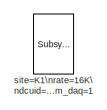
[diagram: root canvas - part 1/4, top left region]
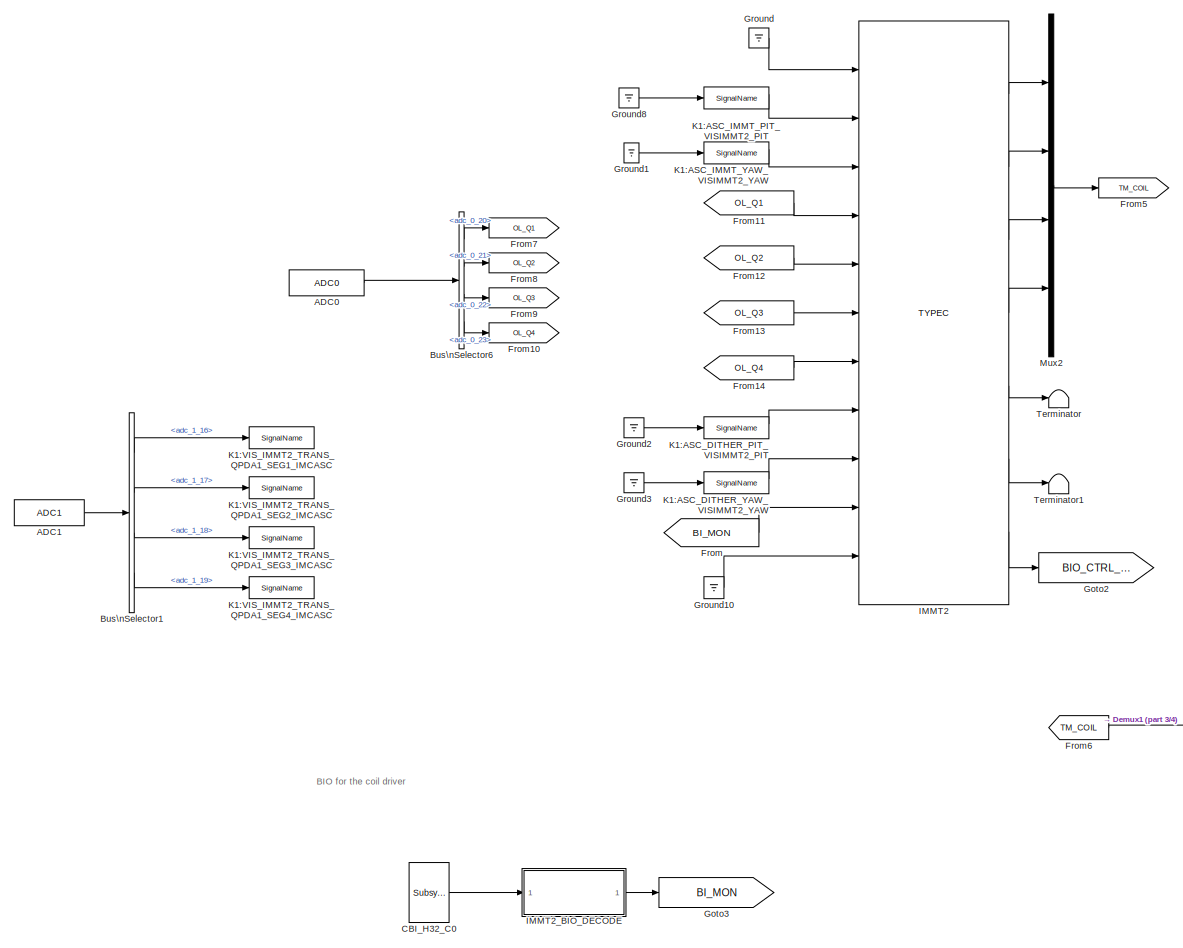
[diagram: root canvas - part 2/4, full width, middle band]
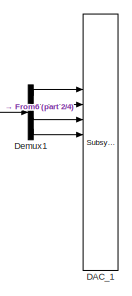
[diagram: root canvas - part 3/4, middle right region]
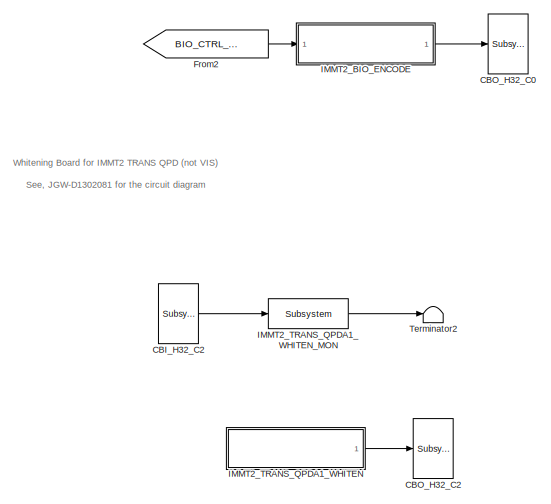
[diagram: root canvas - part 4/4, bottom center region]
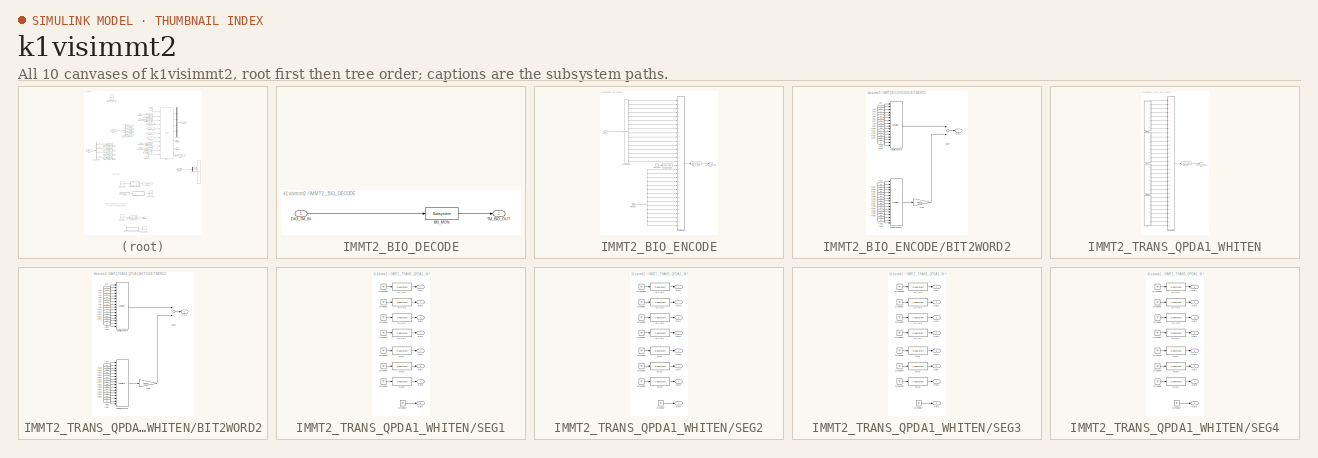
[diagram: thumbnail index - all 10 canvases of the model, root first then tree order]
MODEL k1visimmt2
KIND model
BLOCK [Reference] ADC0  REF=cdsAdcx0/ADC0
  AttributesFormatString = %<Description>\\n%<Tag>
  Description = type-GSC_16AI64SSA\ncard_num=0
  Ports = [0, 1]
  SID = 377
  SourceBlock = cdsAdcx0/ADC0
  SourceType = SubSystem
  Tag = cdsAdc
BLOCK [Reference] ADC1  REF=cdsAdcx1/ADC1
  AttributesFormatString = %<Description>\\n%<Tag>
  Description = type-GSC_16AI64SSA\ncard_num=1
  Ports = [0, 1]
  SID = 514
  SourceBlock = cdsAdcx1/ADC1
  SourceType = SubSystem
  Tag = cdsAdc
BLOCK [BusSelector] Bus\nSelector1
  AttributesFormatString = %<Description>
  Description = ADC Selector
  OutputSignals = adc_1_16,adc_1_17,adc_1_18,adc_1_19
  Ports = [1, 4]
  SID = 515
BLOCK [BusSelector] Bus\nSelector6
  AttributesFormatString = %<Description>
  Description = ADC Selector
  OutputSignals = adc_0_20,adc_0_21,adc_0_22,adc_0_23
  Ports = [1, 4]
  SID = 284
BLOCK [Reference] CBI_H32_C0  REF=cdsCDI64/Subsystem
  AttributesFormatString = %<Tag>\\n%<Description>
  Description = card_num=1
  Ports = [0, 1]
  SID = 512
  SourceBlock = cdsCDI64/Subsystem
  SourceType = SubSystem
  Tag = cdsCDI64
BLOCK [Reference] CBI_H32_C2  REF=cdsCDI64/Subsystem
  AttributesFormatString = %<Tag>\\n%<Description>
  Description = card_num=5
  Ports = [0, 1]
  SID = 544
  SourceBlock = cdsCDI64/Subsystem
  SourceType = SubSystem
  Tag = cdsCDI64
BLOCK [Reference] CBO_H32_C0  REF=cdsCDO64/Subsystem
  AttributesFormatString = %<Tag>\\n%<Description>
  Description = card_num=1
  Ports = [1]
  SID = 513
  SourceBlock = cdsCDO64/Subsystem
  SourceType = SubSystem
  Tag = cdsCDO64
BLOCK [Reference] CBO_H32_C2  REF=cdsCDO64/Subsystem
  AttributesFormatString = %<Tag>\\n%<Description>
  Description = card_num=5
  Ports = [1]
  SID = 545
  SourceBlock = cdsCDO64/Subsystem
  SourceType = SubSystem
  Tag = cdsCDO64
BLOCK [Reference] DAC_1  REF=dac/Subsystem  (lib defined in slx_40ef132df75b, slx_b7657ccccc5b, +4 more)
  AttributesFormatString = %<Description>
  Description = type=GSC_16AO16,\ncard_num=1
  Ports = [16]
  SID = 443
  SourceBlock = dac/Subsystem
  SourceType = SubSystem
BLOCK [Demux] Demux1
  DisplayOption = bar
  Ports = [1, 4]
  SID = 444
BLOCK [From] From
  GotoTag = BI_MON
  SID = 510
BLOCK [Goto] From10
  GotoTag = OL_Q4
  SID = 408
BLOCK [From] From11
  GotoTag = OL_Q1
  SID = 403
BLOCK [From] From12
  GotoTag = OL_Q2
  SID = 404
BLOCK [From] From13
  GotoTag = OL_Q3
  SID = 405
BLOCK [From] From14
  GotoTag = OL_Q4
  SID = 406
BLOCK [From] From2
  GotoTag = BIO_CTRL_OUT
  SID = 508
BLOCK [Goto] From5
  GotoTag = TM_COIL
  SID = 412
BLOCK [From] From6
  GotoTag = TM_COIL
  SID = 415
BLOCK [Goto] From7
  GotoTag = OL_Q1
  SID = 409
BLOCK [Goto] From8
  GotoTag = OL_Q2
  SID = 410
BLOCK [Goto] From9
  GotoTag = OL_Q3
  SID = 411
BLOCK [Goto] Goto2
  GotoTag = BIO_CTRL_OUT
  SID = 511
BLOCK [Goto] Goto3
  GotoTag = BI_MON
  SID = 509
BLOCK [Ground] Ground
  SID = 321
BLOCK [Ground] Ground1
  SID = 707
BLOCK [Ground] Ground10
  SID = 394
BLOCK [Ground] Ground2
  SID = 708
BLOCK [Ground] Ground3
  SID = 709
BLOCK [Ground] Ground8
  SID = 333
BLOCK [Reference] IMMT2  REF=TYPEC_SINGLE_MASTER/TYPEC
  AttributesFormatString = %<Description>
  Description = TYPEC SINGLE MASTER
  Ports = [11, 7]
  SID = 434
  SourceBlock = TYPEC_SINGLE_MASTER/TYPEC
  SourceType = SubSystem
  Tag = top_names
BLOCK [SubSystem] IMMT2_BIO_DECODE
  Ports = [1, 1]
  RequestExecContextInheritance = off
  SID = 456
  Variant = off
BLOCK [Reference] IMMT2_BIO_DECODE/BI0_MON  REF=cdsEpicsOut/Subsystem
  AttributesFormatString = %<Tag>
  Description = Purpose:                                          \nOutput a FE signal to an EPICS channel.           \n                                                  \nOperation:                                        \nTakes input value and passes it to EPICS record.  \n                                                  \nUsage:                                            \nName the part with the desired EPICS...<+14ch>  <repeated x4 — deduplicated; at blocks: BI0_MON, DIO_0_OUT, DIO_OUT, IMMT2_TRANS_QPDA1_WHITEN_MON>
  Ports = [1, 1]
  SID = 458
  SourceBlock = cdsEpicsOut/Subsystem
  SourceType = SubSystem
  Tag = cdsEpicsOutput
BLOCK [Inport] IMMT2_BIO_DECODE/DIO_TM_IN
  IconDisplay = Port number
  SID = 457
BLOCK [Outport] IMMT2_BIO_DECODE/TM_BIO_OUT
  IconDisplay = Port number
  SID = 459
BLOCK [SubSystem] IMMT2_BIO_ENCODE
  Ports = [1, 1]
  RequestExecContextInheritance = off
  SID = 460
  Variant = off
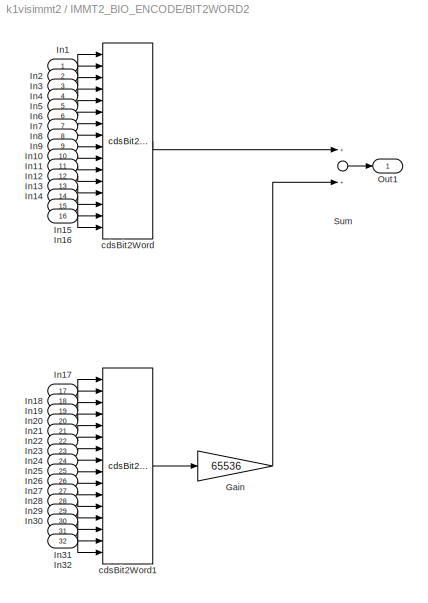
BLOCK [SubSystem] IMMT2_BIO_ENCODE/BIT2WORD2
  Ports = [32, 1]
  RequestExecContextInheritance = off
  SID = 462
  Variant = off
BLOCK [Gain] IMMT2_BIO_ENCODE/BIT2WORD2/Gain
  Gain = 65536
  OutDataTypeStr = Inherit: Inherit via internal rule
  ParamDataTypeStr = Inherit: Inherit via internal rule
  SID = 495
  SaturateOnIntegerOverflow = off
BLOCK [Inport] IMMT2_BIO_ENCODE/BIT2WORD2/In1
  IconDisplay = Port number
  SID = 463
BLOCK [Inport] IMMT2_BIO_ENCODE/BIT2WORD2/In10
  IconDisplay = Port number
  Port = 10
  SID = 472
BLOCK [Inport] IMMT2_BIO_ENCODE/BIT2WORD2/In11
  IconDisplay = Port number
  Port = 11
  SID = 473
BLOCK [Inport] IMMT2_BIO_ENCODE/BIT2WORD2/In12
  IconDisplay = Port number
  Port = 12
  SID = 474
BLOCK [Inport] IMMT2_BIO_ENCODE/BIT2WORD2/In13
  IconDisplay = Port number
  Port = 13
  SID = 475
BLOCK [Inport] IMMT2_BIO_ENCODE/BIT2WORD2/In14
  IconDisplay = Port number
  Port = 14
  SID = 476
BLOCK [Inport] IMMT2_BIO_ENCODE/BIT2WORD2/In15
  IconDisplay = Port number
  Port = 15
  SID = 477
BLOCK [Inport] IMMT2_BIO_ENCODE/BIT2WORD2/In16
  IconDisplay = Port number
  Port = 16
  SID = 478
BLOCK [Inport] IMMT2_BIO_ENCODE/BIT2WORD2/In17
  IconDisplay = Port number
  Port = 17
  SID = 479
BLOCK [Inport] IMMT2_BIO_ENCODE/BIT2WORD2/In18
  IconDisplay = Port number
  Port = 18
  SID = 480
BLOCK [Inport] IMMT2_BIO_ENCODE/BIT2WORD2/In19
  IconDisplay = Port number
  Port = 19
  SID = 481
BLOCK [Inport] IMMT2_BIO_ENCODE/BIT2WORD2/In2
  IconDisplay = Port number
  Port = 2
  SID = 464
BLOCK [Inport] IMMT2_BIO_ENCODE/BIT2WORD2/In20
  IconDisplay = Port number
  Port = 20
  SID = 482
BLOCK [Inport] IMMT2_BIO_ENCODE/BIT2WORD2/In21
  IconDisplay = Port number
  Port = 21
  SID = 483
BLOCK [Inport] IMMT2_BIO_ENCODE/BIT2WORD2/In22
  IconDisplay = Port number
  Port = 22
  SID = 484
BLOCK [Inport] IMMT2_BIO_ENCODE/BIT2WORD2/In23
  IconDisplay = Port number
  Port = 23
  SID = 485
BLOCK [Inport] IMMT2_BIO_ENCODE/BIT2WORD2/In24
  IconDisplay = Port number
  Port = 24
  SID = 486
BLOCK [Inport] IMMT2_BIO_ENCODE/BIT2WORD2/In25
  IconDisplay = Port number
  Port = 25
  SID = 487
BLOCK [Inport] IMMT2_BIO_ENCODE/BIT2WORD2/In26
  IconDisplay = Port number
  Port = 26
  SID = 488
BLOCK [Inport] IMMT2_BIO_ENCODE/BIT2WORD2/In27
  IconDisplay = Port number
  Port = 27
  SID = 489
BLOCK [Inport] IMMT2_BIO_ENCODE/BIT2WORD2/In28
  IconDisplay = Port number
  Port = 28
  SID = 490
BLOCK [Inport] IMMT2_BIO_ENCODE/BIT2WORD2/In29
  IconDisplay = Port number
  Port = 29
  SID = 491
BLOCK [Inport] IMMT2_BIO_ENCODE/BIT2WORD2/In3
  IconDisplay = Port number
  Port = 3
  SID = 465
BLOCK [Inport] IMMT2_BIO_ENCODE/BIT2WORD2/In30
  IconDisplay = Port number
  Port = 30
  SID = 492
BLOCK [Inport] IMMT2_BIO_ENCODE/BIT2WORD2/In31
  IconDisplay = Port number
  Port = 31
  SID = 493
BLOCK [Inport] IMMT2_BIO_ENCODE/BIT2WORD2/In32
  IconDisplay = Port number
  Port = 32
  SID = 494
BLOCK [Inport] IMMT2_BIO_ENCODE/BIT2WORD2/In4
  IconDisplay = Port number
  Port = 4
  SID = 466
BLOCK [Inport] IMMT2_BIO_ENCODE/BIT2WORD2/In5
  IconDisplay = Port number
  Port = 5
  SID = 467
BLOCK [Inport] IMMT2_BIO_ENCODE/BIT2WORD2/In6
  IconDisplay = Port number
  Port = 6
  SID = 468
BLOCK [Inport] IMMT2_BIO_ENCODE/BIT2WORD2/In7
  IconDisplay = Port number
  Port = 7
  SID = 469
BLOCK [Inport] IMMT2_BIO_ENCODE/BIT2WORD2/In8
  IconDisplay = Port number
  Port = 8
  SID = 470
BLOCK [Inport] IMMT2_BIO_ENCODE/BIT2WORD2/In9
  IconDisplay = Port number
  Port = 9
  SID = 471
BLOCK [Outport] IMMT2_BIO_ENCODE/BIT2WORD2/Out1
  IconDisplay = Port number
  SID = 499
BLOCK [Sum] IMMT2_BIO_ENCODE/BIT2WORD2/Sum
  InputSameDT = off
  OutDataTypeStr = Inherit: Inherit via internal rule
  Ports = [2, 1]
  SID = 496
  SaturateOnIntegerOverflow = off
BLOCK [Reference] IMMT2_BIO_ENCODE/BIT2WORD2/cdsBit2Word  REF=cdsBit2Word/cdsBit2Word
  AttributesFormatString = %<Tag>
  Description = Forms single 16 bit integer from 16 0/1 inputs.
  Ports = [16, 1]
  SID = 497
  SourceBlock = cdsBit2Word/cdsBit2Word
  SourceType = SubSystem
  Tag = cdsBit2Word
BLOCK [Reference] IMMT2_BIO_ENCODE/BIT2WORD2/cdsBit2Word1  REF=cdsBit2Word/cdsBit2Word
  AttributesFormatString = %<Tag>
  Description = Forms single 16 bit integer from 16 0/1 inputs.
  Ports = [16, 1]
  SID = 498
  SourceBlock = cdsBit2Word/cdsBit2Word
  SourceType = SubSystem
  Tag = cdsBit2Word
BLOCK [Outport] IMMT2_BIO_ENCODE/CARD0_L32BIT_OUT
  IconDisplay = Port number
  SID = 505
BLOCK [Reference] IMMT2_BIO_ENCODE/DIO_0_OUT  REF=cdsEpicsOut/Subsystem
  AttributesFormatString = %<Tag>
  Ports = [1, 1]
  SID = 500
  SourceBlock = cdsEpicsOut/Subsystem
  SourceType = SubSystem
  Tag = cdsEpicsOutput
BLOCK [Ground] IMMT2_BIO_ENCODE/Ground2
  SID = 501
BLOCK [Ground] IMMT2_BIO_ENCODE/Ground66
  SID = 502
BLOCK [Inport] IMMT2_BIO_ENCODE/TM_In
  IconDisplay = Port number
  SID = 461
BLOCK [Reference] IMMT2_BIO_ENCODE/TM_WD_RSET  REF=cdsEpicsBinIn/Subsystem
  AttributesFormatString = %<Tag>
  Description = Purpose:                                                                            \nCreate an EPICS binary (0 or 1) input channel to the FE realtime controls.          \n                                                                                    \nOperation:                                                                          \nOutputs value from an EPICS ai record. Value is binary i...<+252ch>  <repeated x29 — deduplicated; at blocks: TM_WD_RSET, FILT1, FILT2, FILT3, GAIN1, GAIN2, GAIN3, GAIN4>
  Ports = [1, 1]
  SID = 503
  SourceBlock = cdsEpicsBinIn/Subsystem
  SourceType = SubSystem
  Tag = cdsEpicsBinIn
BLOCK [Reference] IMMT2_BIO_ENCODE/cdsWord2Bit  REF=cdsWord2Bit/cdsWord2Bit
  AttributesFormatString = cdsWord2Bit
  Description = Generate 16 0/1 outputs from single 16-bit integer input
  Ports = [1, 16]
  SID = 504
  SourceBlock = cdsWord2Bit/cdsWord2Bit
  SourceType = SubSystem
  Tag = cdsWord2Bit
BLOCK [SubSystem] IMMT2_TRANS_QPDA1_WHITEN
  Ports = [0, 1]
  RequestExecContextInheritance = off
  SID = 546
  Variant = off
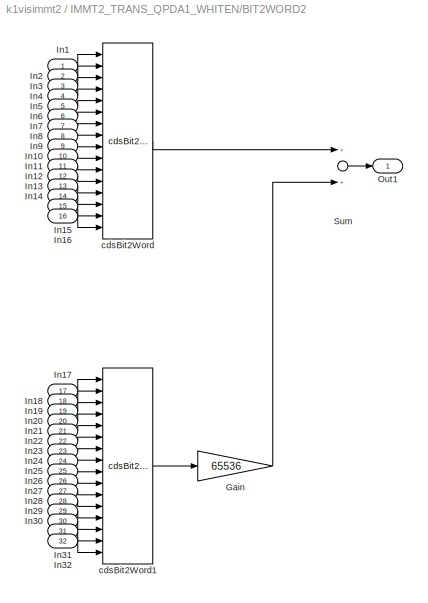
BLOCK [SubSystem] IMMT2_TRANS_QPDA1_WHITEN/BIT2WORD2
  Ports = [32, 1]
  RequestExecContextInheritance = off
  SID = 548
  Variant = off
BLOCK [Gain] IMMT2_TRANS_QPDA1_WHITEN/BIT2WORD2/Gain
  Gain = 65536
  OutDataTypeStr = Inherit: Inherit via internal rule
  ParamDataTypeStr = Inherit: Inherit via internal rule
  SID = 581
  SaturateOnIntegerOverflow = off
BLOCK [Inport] IMMT2_TRANS_QPDA1_WHITEN/BIT2WORD2/In1
  IconDisplay = Port number
  SID = 549
BLOCK [Inport] IMMT2_TRANS_QPDA1_WHITEN/BIT2WORD2/In10
  IconDisplay = Port number
  Port = 10
  SID = 558
BLOCK [Inport] IMMT2_TRANS_QPDA1_WHITEN/BIT2WORD2/In11
  IconDisplay = Port number
  Port = 11
  SID = 559
BLOCK [Inport] IMMT2_TRANS_QPDA1_WHITEN/BIT2WORD2/In12
  IconDisplay = Port number
  Port = 12
  SID = 560
BLOCK [Inport] IMMT2_TRANS_QPDA1_WHITEN/BIT2WORD2/In13
  IconDisplay = Port number
  Port = 13
  SID = 561
BLOCK [Inport] IMMT2_TRANS_QPDA1_WHITEN/BIT2WORD2/In14
  IconDisplay = Port number
  Port = 14
  SID = 562
BLOCK [Inport] IMMT2_TRANS_QPDA1_WHITEN/BIT2WORD2/In15
  IconDisplay = Port number
  Port = 15
  SID = 563
BLOCK [Inport] IMMT2_TRANS_QPDA1_WHITEN/BIT2WORD2/In16
  IconDisplay = Port number
  Port = 16
  SID = 564
BLOCK [Inport] IMMT2_TRANS_QPDA1_WHITEN/BIT2WORD2/In17
  IconDisplay = Port number
  Port = 17
  SID = 565
BLOCK [Inport] IMMT2_TRANS_QPDA1_WHITEN/BIT2WORD2/In18
  IconDisplay = Port number
  Port = 18
  SID = 566
BLOCK [Inport] IMMT2_TRANS_QPDA1_WHITEN/BIT2WORD2/In19
  IconDisplay = Port number
  Port = 19
  SID = 567
BLOCK [Inport] IMMT2_TRANS_QPDA1_WHITEN/BIT2WORD2/In2
  IconDisplay = Port number
  Port = 2
  SID = 550
BLOCK [Inport] IMMT2_TRANS_QPDA1_WHITEN/BIT2WORD2/In20
  IconDisplay = Port number
  Port = 20
  SID = 568
BLOCK [Inport] IMMT2_TRANS_QPDA1_WHITEN/BIT2WORD2/In21
  IconDisplay = Port number
  Port = 21
  SID = 569
BLOCK [Inport] IMMT2_TRANS_QPDA1_WHITEN/BIT2WORD2/In22
  IconDisplay = Port number
  Port = 22
  SID = 570
BLOCK [Inport] IMMT2_TRANS_QPDA1_WHITEN/BIT2WORD2/In23
  IconDisplay = Port number
  Port = 23
  SID = 571
BLOCK [Inport] IMMT2_TRANS_QPDA1_WHITEN/BIT2WORD2/In24
  IconDisplay = Port number
  Port = 24
  SID = 572
BLOCK [Inport] IMMT2_TRANS_QPDA1_WHITEN/BIT2WORD2/In25
  IconDisplay = Port number
  Port = 25
  SID = 573
BLOCK [Inport] IMMT2_TRANS_QPDA1_WHITEN/BIT2WORD2/In26
  IconDisplay = Port number
  Port = 26
  SID = 574
BLOCK [Inport] IMMT2_TRANS_QPDA1_WHITEN/BIT2WORD2/In27
  IconDisplay = Port number
  Port = 27
  SID = 575
BLOCK [Inport] IMMT2_TRANS_QPDA1_WHITEN/BIT2WORD2/In28
  IconDisplay = Port number
  Port = 28
  SID = 576
BLOCK [Inport] IMMT2_TRANS_QPDA1_WHITEN/BIT2WORD2/In29
  IconDisplay = Port number
  Port = 29
  SID = 577
BLOCK [Inport] IMMT2_TRANS_QPDA1_WHITEN/BIT2WORD2/In3
  IconDisplay = Port number
  Port = 3
  SID = 551
BLOCK [Inport] IMMT2_TRANS_QPDA1_WHITEN/BIT2WORD2/In30
  IconDisplay = Port number
  Port = 30
  SID = 578
BLOCK [Inport] IMMT2_TRANS_QPDA1_WHITEN/BIT2WORD2/In31
  IconDisplay = Port number
  Port = 31
  SID = 579
BLOCK [Inport] IMMT2_TRANS_QPDA1_WHITEN/BIT2WORD2/In32
  IconDisplay = Port number
  Port = 32
  SID = 580
BLOCK [Inport] IMMT2_TRANS_QPDA1_WHITEN/BIT2WORD2/In4
  IconDisplay = Port number
  Port = 4
  SID = 552
BLOCK [Inport] IMMT2_TRANS_QPDA1_WHITEN/BIT2WORD2/In5
  IconDisplay = Port number
  Port = 5
  SID = 553
BLOCK [Inport] IMMT2_TRANS_QPDA1_WHITEN/BIT2WORD2/In6
  IconDisplay = Port number
  Port = 6
  SID = 554
BLOCK [Inport] IMMT2_TRANS_QPDA1_WHITEN/BIT2WORD2/In7
  IconDisplay = Port number
  Port = 7
  SID = 555
BLOCK [Inport] IMMT2_TRANS_QPDA1_WHITEN/BIT2WORD2/In8
  IconDisplay = Port number
  Port = 8
  SID = 556
BLOCK [Inport] IMMT2_TRANS_QPDA1_WHITEN/BIT2WORD2/In9
  IconDisplay = Port number
  Port = 9
  SID = 557
BLOCK [Outport] IMMT2_TRANS_QPDA1_WHITEN/BIT2WORD2/Out1
  IconDisplay = Port number
  SID = 585
BLOCK [Sum] IMMT2_TRANS_QPDA1_WHITEN/BIT2WORD2/Sum
  InputSameDT = off
  OutDataTypeStr = Inherit: Inherit via internal rule
  Ports = [2, 1]
  SID = 582
  SaturateOnIntegerOverflow = off
BLOCK [Reference] IMMT2_TRANS_QPDA1_WHITEN/BIT2WORD2/cdsBit2Word  REF=cdsBit2Word/cdsBit2Word
  AttributesFormatString = %<Tag>
  Description = Forms single 16 bit integer from 16 0/1 inputs.
  Ports = [16, 1]
  SID = 583
  SourceBlock = cdsBit2Word/cdsBit2Word
  SourceType = SubSystem
  Tag = cdsBit2Word
BLOCK [Reference] IMMT2_TRANS_QPDA1_WHITEN/BIT2WORD2/cdsBit2Word1  REF=cdsBit2Word/cdsBit2Word
  AttributesFormatString = %<Tag>
  Description = Forms single 16 bit integer from 16 0/1 inputs.
  Ports = [16, 1]
  SID = 584
  SourceBlock = cdsBit2Word/cdsBit2Word
  SourceType = SubSystem
  Tag = cdsBit2Word
BLOCK [Outport] IMMT2_TRANS_QPDA1_WHITEN/CARD0_L32BIT_OUT
  IconDisplay = Port number
  SID = 591
BLOCK [Reference] IMMT2_TRANS_QPDA1_WHITEN/DIO_OUT  REF=cdsEpicsOut/Subsystem
  AttributesFormatString = %<Tag>
  Ports = [1, 1]
  SID = 586
  SourceBlock = cdsEpicsOut/Subsystem
  SourceType = SubSystem
  Tag = cdsEpicsOutput
BLOCK [SubSystem] IMMT2_TRANS_QPDA1_WHITEN/SEG1
  Ports = [0, 8]
  RequestExecContextInheritance = off
  SID = 603
  Variant = off
BLOCK [Reference] IMMT2_TRANS_QPDA1_WHITEN/SEG1/FILT1  REF=cdsEpicsBinIn/Subsystem
  AttributesFormatString = %<Tag>
  Ports = [1, 1]
  SID = 599
  SourceBlock = cdsEpicsBinIn/Subsystem
  SourceType = SubSystem
  Tag = cdsEpicsBinIn
BLOCK [Reference] IMMT2_TRANS_QPDA1_WHITEN/SEG1/FILT2  REF=cdsEpicsBinIn/Subsystem
  AttributesFormatString = %<Tag>
  Ports = [1, 1]
  SID = 600
  SourceBlock = cdsEpicsBinIn/Subsystem
  SourceType = SubSystem
  Tag = cdsEpicsBinIn
BLOCK [Reference] IMMT2_TRANS_QPDA1_WHITEN/SEG1/FILT3  REF=cdsEpicsBinIn/Subsystem
  AttributesFormatString = %<Tag>
  Ports = [1, 1]
  SID = 601
  SourceBlock = cdsEpicsBinIn/Subsystem
  SourceType = SubSystem
  Tag = cdsEpicsBinIn
BLOCK [Reference] IMMT2_TRANS_QPDA1_WHITEN/SEG1/GAIN1  REF=cdsEpicsBinIn/Subsystem
  AttributesFormatString = %<Tag>
  Ports = [1, 1]
  SID = 595
  SourceBlock = cdsEpicsBinIn/Subsystem
  SourceType = SubSystem
  Tag = cdsEpicsBinIn
BLOCK [Reference] IMMT2_TRANS_QPDA1_WHITEN/SEG1/GAIN2  REF=cdsEpicsBinIn/Subsystem
  AttributesFormatString = %<Tag>
  Ports = [1, 1]
  SID = 596
  SourceBlock = cdsEpicsBinIn/Subsystem
  SourceType = SubSystem
  Tag = cdsEpicsBinIn
BLOCK [Reference] IMMT2_TRANS_QPDA1_WHITEN/SEG1/GAIN3  REF=cdsEpicsBinIn/Subsystem
  AttributesFormatString = %<Tag>
  Ports = [1, 1]
  SID = 597
  SourceBlock = cdsEpicsBinIn/Subsystem
  SourceType = SubSystem
  Tag = cdsEpicsBinIn
BLOCK [Reference] IMMT2_TRANS_QPDA1_WHITEN/SEG1/GAIN4  REF=cdsEpicsBinIn/Subsystem
  AttributesFormatString = %<Tag>
  Ports = [1, 1]
  SID = 598
  SourceBlock = cdsEpicsBinIn/Subsystem
  SourceType = SubSystem
  Tag = cdsEpicsBinIn
BLOCK [Ground] IMMT2_TRANS_QPDA1_WHITEN/SEG1/Ground1
  SID = 620
BLOCK [Ground] IMMT2_TRANS_QPDA1_WHITEN/SEG1/Ground2
  SID = 622
BLOCK [Ground] IMMT2_TRANS_QPDA1_WHITEN/SEG1/Ground3
  SID = 623
BLOCK [Ground] IMMT2_TRANS_QPDA1_WHITEN/SEG1/Ground4
  SID = 624
BLOCK [Ground] IMMT2_TRANS_QPDA1_WHITEN/SEG1/Ground5
  SID = 625
BLOCK [Ground] IMMT2_TRANS_QPDA1_WHITEN/SEG1/Ground6
  SID = 626
BLOCK [Ground] IMMT2_TRANS_QPDA1_WHITEN/SEG1/Ground66
  SID = 619
BLOCK [Ground] IMMT2_TRANS_QPDA1_WHITEN/SEG1/Ground7
  SID = 627
BLOCK [Outport] IMMT2_TRANS_QPDA1_WHITEN/SEG1/Out1
  IconDisplay = Port number
  SID = 611
BLOCK [Outport] IMMT2_TRANS_QPDA1_WHITEN/SEG1/Out2
  IconDisplay = Port number
  Port = 8
  SID = 628
BLOCK [Outport] IMMT2_TRANS_QPDA1_WHITEN/SEG1/Out3
  IconDisplay = Port number
  Port = 2
  SID = 613
BLOCK [Outport] IMMT2_TRANS_QPDA1_WHITEN/SEG1/Out4
  IconDisplay = Port number
  Port = 3
  SID = 614
BLOCK [Outport] IMMT2_TRANS_QPDA1_WHITEN/SEG1/Out5
  IconDisplay = Port number
  Port = 4
  SID = 615
BLOCK [Outport] IMMT2_TRANS_QPDA1_WHITEN/SEG1/Out6
  IconDisplay = Port number
  Port = 5
  SID = 616
BLOCK [Outport] IMMT2_TRANS_QPDA1_WHITEN/SEG1/Out7
  IconDisplay = Port number
  Port = 6
  SID = 617
BLOCK [Outport] IMMT2_TRANS_QPDA1_WHITEN/SEG1/Out8
  IconDisplay = Port number
  Port = 7
  SID = 618
BLOCK [SubSystem] IMMT2_TRANS_QPDA1_WHITEN/SEG2
  Ports = [0, 8]
  RequestExecContextInheritance = off
  SID = 629
  Variant = off
BLOCK [Reference] IMMT2_TRANS_QPDA1_WHITEN/SEG2/FILT1  REF=cdsEpicsBinIn/Subsystem
  AttributesFormatString = %<Tag>
  Ports = [1, 1]
  SID = 630
  SourceBlock = cdsEpicsBinIn/Subsystem
  SourceType = SubSystem
  Tag = cdsEpicsBinIn
BLOCK [Reference] IMMT2_TRANS_QPDA1_WHITEN/SEG2/FILT2  REF=cdsEpicsBinIn/Subsystem
  AttributesFormatString = %<Tag>
  Ports = [1, 1]
  SID = 631
  SourceBlock = cdsEpicsBinIn/Subsystem
  SourceType = SubSystem
  Tag = cdsEpicsBinIn
BLOCK [Reference] IMMT2_TRANS_QPDA1_WHITEN/SEG2/FILT3  REF=cdsEpicsBinIn/Subsystem
  AttributesFormatString = %<Tag>
  Ports = [1, 1]
  SID = 632
  SourceBlock = cdsEpicsBinIn/Subsystem
  SourceType = SubSystem
  Tag = cdsEpicsBinIn
BLOCK [Reference] IMMT2_TRANS_QPDA1_WHITEN/SEG2/GAIN1  REF=cdsEpicsBinIn/Subsystem
  AttributesFormatString = %<Tag>
  Ports = [1, 1]
  SID = 633
  SourceBlock = cdsEpicsBinIn/Subsystem
  SourceType = SubSystem
  Tag = cdsEpicsBinIn
BLOCK [Reference] IMMT2_TRANS_QPDA1_WHITEN/SEG2/GAIN2  REF=cdsEpicsBinIn/Subsystem
  AttributesFormatString = %<Tag>
  Ports = [1, 1]
  SID = 634
  SourceBlock = cdsEpicsBinIn/Subsystem
  SourceType = SubSystem
  Tag = cdsEpicsBinIn
BLOCK [Reference] IMMT2_TRANS_QPDA1_WHITEN/SEG2/GAIN3  REF=cdsEpicsBinIn/Subsystem
  AttributesFormatString = %<Tag>
  Ports = [1, 1]
  SID = 635
  SourceBlock = cdsEpicsBinIn/Subsystem
  SourceType = SubSystem
  Tag = cdsEpicsBinIn
BLOCK [Reference] IMMT2_TRANS_QPDA1_WHITEN/SEG2/GAIN4  REF=cdsEpicsBinIn/Subsystem
  AttributesFormatString = %<Tag>
  Ports = [1, 1]
  SID = 636
  SourceBlock = cdsEpicsBinIn/Subsystem
  SourceType = SubSystem
  Tag = cdsEpicsBinIn
BLOCK [Ground] IMMT2_TRANS_QPDA1_WHITEN/SEG2/Ground1
  SID = 637
BLOCK [Ground] IMMT2_TRANS_QPDA1_WHITEN/SEG2/Ground2
  SID = 638
BLOCK [Ground] IMMT2_TRANS_QPDA1_WHITEN/SEG2/Ground3
  SID = 639
BLOCK [Ground] IMMT2_TRANS_QPDA1_WHITEN/SEG2/Ground4
  SID = 640
BLOCK [Ground] IMMT2_TRANS_QPDA1_WHITEN/SEG2/Ground5
  SID = 641
BLOCK [Ground] IMMT2_TRANS_QPDA1_WHITEN/SEG2/Ground6
  SID = 642
BLOCK [Ground] IMMT2_TRANS_QPDA1_WHITEN/SEG2/Ground66
  SID = 643
BLOCK [Ground] IMMT2_TRANS_QPDA1_WHITEN/SEG2/Ground7
  SID = 644
BLOCK [Outport] IMMT2_TRANS_QPDA1_WHITEN/SEG2/Out1
  IconDisplay = Port number
  SID = 645
BLOCK [Outport] IMMT2_TRANS_QPDA1_WHITEN/SEG2/Out2
  IconDisplay = Port number
  Port = 8
  SID = 652
BLOCK [Outport] IMMT2_TRANS_QPDA1_WHITEN/SEG2/Out3
  IconDisplay = Port number
  Port = 2
  SID = 646
BLOCK [Outport] IMMT2_TRANS_QPDA1_WHITEN/SEG2/Out4
  IconDisplay = Port number
  Port = 3
  SID = 647
BLOCK [Outport] IMMT2_TRANS_QPDA1_WHITEN/SEG2/Out5
  IconDisplay = Port number
  Port = 4
  SID = 648
BLOCK [Outport] IMMT2_TRANS_QPDA1_WHITEN/SEG2/Out6
  IconDisplay = Port number
  Port = 5
  SID = 649
BLOCK [Outport] IMMT2_TRANS_QPDA1_WHITEN/SEG2/Out7
  IconDisplay = Port number
  Port = 6
  SID = 650
BLOCK [Outport] IMMT2_TRANS_QPDA1_WHITEN/SEG2/Out8
  IconDisplay = Port number
  Port = 7
  SID = 651
BLOCK [SubSystem] IMMT2_TRANS_QPDA1_WHITEN/SEG3
  Ports = [0, 8]
  RequestExecContextInheritance = off
  SID = 653
  Variant = off
BLOCK [Reference] IMMT2_TRANS_QPDA1_WHITEN/SEG3/FILT1  REF=cdsEpicsBinIn/Subsystem
  AttributesFormatString = %<Tag>
  Ports = [1, 1]
  SID = 654
  SourceBlock = cdsEpicsBinIn/Subsystem
  SourceType = SubSystem
  Tag = cdsEpicsBinIn
BLOCK [Reference] IMMT2_TRANS_QPDA1_WHITEN/SEG3/FILT2  REF=cdsEpicsBinIn/Subsystem
  AttributesFormatString = %<Tag>
  Ports = [1, 1]
  SID = 655
  SourceBlock = cdsEpicsBinIn/Subsystem
  SourceType = SubSystem
  Tag = cdsEpicsBinIn
BLOCK [Reference] IMMT2_TRANS_QPDA1_WHITEN/SEG3/FILT3  REF=cdsEpicsBinIn/Subsystem
  AttributesFormatString = %<Tag>
  Ports = [1, 1]
  SID = 656
  SourceBlock = cdsEpicsBinIn/Subsystem
  SourceType = SubSystem
  Tag = cdsEpicsBinIn
BLOCK [Reference] IMMT2_TRANS_QPDA1_WHITEN/SEG3/GAIN1  REF=cdsEpicsBinIn/Subsystem
  AttributesFormatString = %<Tag>
  Ports = [1, 1]
  SID = 657
  SourceBlock = cdsEpicsBinIn/Subsystem
  SourceType = SubSystem
  Tag = cdsEpicsBinIn
BLOCK [Reference] IMMT2_TRANS_QPDA1_WHITEN/SEG3/GAIN2  REF=cdsEpicsBinIn/Subsystem
  AttributesFormatString = %<Tag>
  Ports = [1, 1]
  SID = 658
  SourceBlock = cdsEpicsBinIn/Subsystem
  SourceType = SubSystem
  Tag = cdsEpicsBinIn
BLOCK [Reference] IMMT2_TRANS_QPDA1_WHITEN/SEG3/GAIN3  REF=cdsEpicsBinIn/Subsystem
  AttributesFormatString = %<Tag>
  Ports = [1, 1]
  SID = 659
  SourceBlock = cdsEpicsBinIn/Subsystem
  SourceType = SubSystem
  Tag = cdsEpicsBinIn
BLOCK [Reference] IMMT2_TRANS_QPDA1_WHITEN/SEG3/GAIN4  REF=cdsEpicsBinIn/Subsystem
  AttributesFormatString = %<Tag>
  Ports = [1, 1]
  SID = 660
  SourceBlock = cdsEpicsBinIn/Subsystem
  SourceType = SubSystem
  Tag = cdsEpicsBinIn
BLOCK [Ground] IMMT2_TRANS_QPDA1_WHITEN/SEG3/Ground1
  SID = 661
BLOCK [Ground] IMMT2_TRANS_QPDA1_WHITEN/SEG3/Ground2
  SID = 662
BLOCK [Ground] IMMT2_TRANS_QPDA1_WHITEN/SEG3/Ground3
  SID = 663
BLOCK [Ground] IMMT2_TRANS_QPDA1_WHITEN/SEG3/Ground4
  SID = 664
BLOCK [Ground] IMMT2_TRANS_QPDA1_WHITEN/SEG3/Ground5
  SID = 665
BLOCK [Ground] IMMT2_TRANS_QPDA1_WHITEN/SEG3/Ground6
  SID = 666
BLOCK [Ground] IMMT2_TRANS_QPDA1_WHITEN/SEG3/Ground66
  SID = 667
BLOCK [Ground] IMMT2_TRANS_QPDA1_WHITEN/SEG3/Ground7
  SID = 668
BLOCK [Outport] IMMT2_TRANS_QPDA1_WHITEN/SEG3/Out1
  IconDisplay = Port number
  SID = 669
BLOCK [Outport] IMMT2_TRANS_QPDA1_WHITEN/SEG3/Out2
  IconDisplay = Port number
  Port = 8
  SID = 676
BLOCK [Outport] IMMT2_TRANS_QPDA1_WHITEN/SEG3/Out3
  IconDisplay = Port number
  Port = 2
  SID = 670
BLOCK [Outport] IMMT2_TRANS_QPDA1_WHITEN/SEG3/Out4
  IconDisplay = Port number
  Port = 3
  SID = 671
BLOCK [Outport] IMMT2_TRANS_QPDA1_WHITEN/SEG3/Out5
  IconDisplay = Port number
  Port = 4
  SID = 672
BLOCK [Outport] IMMT2_TRANS_QPDA1_WHITEN/SEG3/Out6
  IconDisplay = Port number
  Port = 5
  SID = 673
BLOCK [Outport] IMMT2_TRANS_QPDA1_WHITEN/SEG3/Out7
  IconDisplay = Port number
  Port = 6
  SID = 674
BLOCK [Outport] IMMT2_TRANS_QPDA1_WHITEN/SEG3/Out8
  IconDisplay = Port number
  Port = 7
  SID = 675
BLOCK [SubSystem] IMMT2_TRANS_QPDA1_WHITEN/SEG4
  Ports = [0, 8]
  RequestExecContextInheritance = off
  SID = 677
  Variant = off
BLOCK [Reference] IMMT2_TRANS_QPDA1_WHITEN/SEG4/FILT1  REF=cdsEpicsBinIn/Subsystem
  AttributesFormatString = %<Tag>
  Ports = [1, 1]
  SID = 678
  SourceBlock = cdsEpicsBinIn/Subsystem
  SourceType = SubSystem
  Tag = cdsEpicsBinIn
BLOCK [Reference] IMMT2_TRANS_QPDA1_WHITEN/SEG4/FILT2  REF=cdsEpicsBinIn/Subsystem
  AttributesFormatString = %<Tag>
  Ports = [1, 1]
  SID = 679
  SourceBlock = cdsEpicsBinIn/Subsystem
  SourceType = SubSystem
  Tag = cdsEpicsBinIn
BLOCK [Reference] IMMT2_TRANS_QPDA1_WHITEN/SEG4/FILT3  REF=cdsEpicsBinIn/Subsystem
  AttributesFormatString = %<Tag>
  Ports = [1, 1]
  SID = 680
  SourceBlock = cdsEpicsBinIn/Subsystem
  SourceType = SubSystem
  Tag = cdsEpicsBinIn
BLOCK [Reference] IMMT2_TRANS_QPDA1_WHITEN/SEG4/GAIN1  REF=cdsEpicsBinIn/Subsystem
  AttributesFormatString = %<Tag>
  Ports = [1, 1]
  SID = 681
  SourceBlock = cdsEpicsBinIn/Subsystem
  SourceType = SubSystem
  Tag = cdsEpicsBinIn
BLOCK [Reference] IMMT2_TRANS_QPDA1_WHITEN/SEG4/GAIN2  REF=cdsEpicsBinIn/Subsystem
  AttributesFormatString = %<Tag>
  Ports = [1, 1]
  SID = 682
  SourceBlock = cdsEpicsBinIn/Subsystem
  SourceType = SubSystem
  Tag = cdsEpicsBinIn
BLOCK [Reference] IMMT2_TRANS_QPDA1_WHITEN/SEG4/GAIN3  REF=cdsEpicsBinIn/Subsystem
  AttributesFormatString = %<Tag>
  Ports = [1, 1]
  SID = 683
  SourceBlock = cdsEpicsBinIn/Subsystem
  SourceType = SubSystem
  Tag = cdsEpicsBinIn
BLOCK [Reference] IMMT2_TRANS_QPDA1_WHITEN/SEG4/GAIN4  REF=cdsEpicsBinIn/Subsystem
  AttributesFormatString = %<Tag>
  Ports = [1, 1]
  SID = 684
  SourceBlock = cdsEpicsBinIn/Subsystem
  SourceType = SubSystem
  Tag = cdsEpicsBinIn
BLOCK [Ground] IMMT2_TRANS_QPDA1_WHITEN/SEG4/Ground1
  SID = 685
BLOCK [Ground] IMMT2_TRANS_QPDA1_WHITEN/SEG4/Ground2
  SID = 686
BLOCK [Ground] IMMT2_TRANS_QPDA1_WHITEN/SEG4/Ground3
  SID = 687
BLOCK [Ground] IMMT2_TRANS_QPDA1_WHITEN/SEG4/Ground4
  SID = 688
BLOCK [Ground] IMMT2_TRANS_QPDA1_WHITEN/SEG4/Ground5
  SID = 689
BLOCK [Ground] IMMT2_TRANS_QPDA1_WHITEN/SEG4/Ground6
  SID = 690
BLOCK [Ground] IMMT2_TRANS_QPDA1_WHITEN/SEG4/Ground66
  SID = 691
BLOCK [Ground] IMMT2_TRANS_QPDA1_WHITEN/SEG4/Ground7
  SID = 692
BLOCK [Outport] IMMT2_TRANS_QPDA1_WHITEN/SEG4/Out1
  IconDisplay = Port number
  SID = 693
BLOCK [Outport] IMMT2_TRANS_QPDA1_WHITEN/SEG4/Out2
  IconDisplay = Port number
  Port = 8
  SID = 700
BLOCK [Outport] IMMT2_TRANS_QPDA1_WHITEN/SEG4/Out3
  IconDisplay = Port number
  Port = 2
  SID = 694
BLOCK [Outport] IMMT2_TRANS_QPDA1_WHITEN/SEG4/Out4
  IconDisplay = Port number
  Port = 3
  SID = 695
BLOCK [Outport] IMMT2_TRANS_QPDA1_WHITEN/SEG4/Out5
  IconDisplay = Port number
  Port = 4
  SID = 696
BLOCK [Outport] IMMT2_TRANS_QPDA1_WHITEN/SEG4/Out6
  IconDisplay = Port number
  Port = 5
  SID = 697
BLOCK [Outport] IMMT2_TRANS_QPDA1_WHITEN/SEG4/Out7
  IconDisplay = Port number
  Port = 6
  SID = 698
BLOCK [Outport] IMMT2_TRANS_QPDA1_WHITEN/SEG4/Out8
  IconDisplay = Port number
  Port = 7
  SID = 699
BLOCK [Reference] IMMT2_TRANS_QPDA1_WHITEN_MON  REF=cdsEpicsOut/Subsystem
  AttributesFormatString = %<Tag>
  Ports = [1, 1]
  SID = 592
  SourceBlock = cdsEpicsOut/Subsystem
  SourceType = SubSystem
  Tag = cdsEpicsOutput
BLOCK [Reference] K1:ASC_DITHER_PIT_VISIMMT2_PIT  REF=cdsIPCx/SignalName
  AttributesFormatString = %<Tag>
  Description = Inter-Process Communication via PCI Express network.
  Ports = [1, 2]
  SID = 703
  SourceBlock = cdsIPCx/SignalName
  SourceType = SubSystem
  Tag = cdsIPCx_PCIE
BLOCK [Reference] K1:ASC_DITHER_YAW_VISIMMT2_YAW  REF=cdsIPCx/SignalName
  AttributesFormatString = %<Tag>
  Description = Inter-Process Communication via PCI Express network.
  Ports = [1, 2]
  SID = 704
  SourceBlock = cdsIPCx/SignalName
  SourceType = SubSystem
  Tag = cdsIPCx_PCIE
BLOCK [Reference] K1:ASC_IMMT_PIT_VISIMMT2_PIT  REF=cdsIPCx/SignalName
  AttributesFormatString = %<Tag>
  Description = Inter-Process Communication via PCI Express network.
  Ports = [1, 2]
  SID = 705
  SourceBlock = cdsIPCx/SignalName
  SourceType = SubSystem
  Tag = cdsIPCx_PCIE
BLOCK [Reference] K1:ASC_IMMT_YAW_VISIMMT2_YAW  REF=cdsIPCx/SignalName
  AttributesFormatString = %<Tag>
  Description = Inter-Process Communication via PCI Express network.
  Ports = [1, 2]
  SID = 706
  SourceBlock = cdsIPCx/SignalName
  SourceType = SubSystem
  Tag = cdsIPCx_PCIE
BLOCK [Reference] K1:VIS_IMMT2_TRANS_QPDA1_SEG1_IMCASC  REF=cdsIPCx/SignalName
  AttributesFormatString = %<Tag>
  Description = Inter-Process Communication via PCI Express network.
  Ports = [1, 2]
  SID = 536
  SourceBlock = cdsIPCx/SignalName
  SourceType = SubSystem
  Tag = cdsIPCx_PCIE
BLOCK [Reference] K1:VIS_IMMT2_TRANS_QPDA1_SEG2_IMCASC  REF=cdsIPCx/SignalName
  AttributesFormatString = %<Tag>
  Description = Inter-Process Communication via PCI Express network.
  Ports = [1, 2]
  SID = 537
  SourceBlock = cdsIPCx/SignalName
  SourceType = SubSystem
  Tag = cdsIPCx_PCIE
BLOCK [Reference] K1:VIS_IMMT2_TRANS_QPDA1_SEG3_IMCASC  REF=cdsIPCx/SignalName
  AttributesFormatString = %<Tag>
  Description = Inter-Process Communication via PCI Express network.
  Ports = [1, 2]
  SID = 538
  SourceBlock = cdsIPCx/SignalName
  SourceType = SubSystem
  Tag = cdsIPCx_PCIE
BLOCK [Reference] K1:VIS_IMMT2_TRANS_QPDA1_SEG4_IMCASC  REF=cdsIPCx/SignalName
  AttributesFormatString = %<Tag>
  Description = Inter-Process Communication via PCI Express network.
  Ports = [1, 2]
  SID = 539
  SourceBlock = cdsIPCx/SignalName
  SourceType = SubSystem
  Tag = cdsIPCx_PCIE
BLOCK [Mux] Mux2
  DisplayOption = bar
  Ports = [4, 1]
  SID = 413
BLOCK [Terminator] Terminator
  SID = 435
BLOCK [Terminator] Terminator1
  SID = 436
BLOCK [Terminator] Terminator2
  SID = 593
BLOCK [Reference] site=K1\nrate=16K\ndcuid=43\nhost=k1imc0\nspecific_cpu=7\nadcSlave=1\nshmem_daq=1  REF=cdsParameters/Subsystem
  AttributesFormatString = %<Tag>
  Description = Purpose:                                                                                                                                                                                                                                \nProvide system parameters to the FE code generator to properly configure the generated EPICS names, rep rate of the FE controller, and the Data Acquisition node ID fo...<+2934ch>
  Ports = []
  SID = 336
  SourceBlock = cdsParameters/Subsystem
  SourceType = SubSystem
  Tag = cdsParameters
ANNOTATION (root): \n \n BIO for the coil driver
ANNOTATION (root): \n \n Whitening Board for IMMT2 TRANS QPD (not VIS) \n See, JGW-D1302081 for the circuit diagram \n Note that actual QPD chans are under K1:IMC
LINE ADC0:1 -> Bus\nSelector6:1
LINE ADC1:1 -> Bus\nSelector1:1
LINE Bus\nSelector1:1 -> K1:VIS_IMMT2_TRANS_QPDA1_SEG1_IMCASC:1
LINE Bus\nSelector1:2 -> K1:VIS_IMMT2_TRANS_QPDA1_SEG2_IMCASC:1
LINE Bus\nSelector1:3 -> K1:VIS_IMMT2_TRANS_QPDA1_SEG3_IMCASC:1
LINE Bus\nSelector1:4 -> K1:VIS_IMMT2_TRANS_QPDA1_SEG4_IMCASC:1
LINE Bus\nSelector6:1 -> From7:1
LINE Bus\nSelector6:2 -> From8:1
LINE Bus\nSelector6:3 -> From9:1
LINE Bus\nSelector6:4 -> From10:1
LINE CBI_H32_C0:1 -> IMMT2_BIO_DECODE:1
LINE CBI_H32_C2:1 -> IMMT2_TRANS_QPDA1_WHITEN_MON:1
LINE Demux1:1 -> DAC_1:5
LINE Demux1:2 -> DAC_1:6
LINE Demux1:3 -> DAC_1:7
LINE Demux1:4 -> DAC_1:8
LINE From11:1 -> IMMT2:4
LINE From12:1 -> IMMT2:5
LINE From13:1 -> IMMT2:6
LINE From14:1 -> IMMT2:7
LINE From2:1 -> IMMT2_BIO_ENCODE:1
LINE From6:1 -> Demux1:1
LINE From:1 -> IMMT2:10
LINE Ground10:1 -> IMMT2:11
LINE Ground1:1 -> K1:ASC_IMMT_YAW_VISIMMT2_YAW:1
LINE Ground2:1 -> K1:ASC_DITHER_PIT_VISIMMT2_PIT:1
LINE Ground3:1 -> K1:ASC_DITHER_YAW_VISIMMT2_YAW:1
LINE Ground8:1 -> K1:ASC_IMMT_PIT_VISIMMT2_PIT:1
LINE Ground:1 -> IMMT2:1
LINE IMMT2:1 -> Mux2:1
LINE IMMT2:2 -> Mux2:2
LINE IMMT2:3 -> Mux2:3
LINE IMMT2:4 -> Mux2:4
LINE IMMT2:5 -> Terminator:1
LINE IMMT2:6 -> Terminator1:1
LINE IMMT2:7 -> Goto2:1
LINE IMMT2_BIO_DECODE/BI0_MON:1 -> IMMT2_BIO_DECODE/TM_BIO_OUT:1
LINE IMMT2_BIO_DECODE/DIO_TM_IN:1 -> IMMT2_BIO_DECODE/BI0_MON:1
LINE IMMT2_BIO_DECODE:1 -> Goto3:1
LINE IMMT2_BIO_ENCODE/BIT2WORD2/Gain:1 -> IMMT2_BIO_ENCODE/BIT2WORD2/Sum:2
LINE IMMT2_BIO_ENCODE/BIT2WORD2/In10:1 -> IMMT2_BIO_ENCODE/BIT2WORD2/cdsBit2Word:10
LINE IMMT2_BIO_ENCODE/BIT2WORD2/In11:1 -> IMMT2_BIO_ENCODE/BIT2WORD2/cdsBit2Word:11
LINE IMMT2_BIO_ENCODE/BIT2WORD2/In12:1 -> IMMT2_BIO_ENCODE/BIT2WORD2/cdsBit2Word:12
LINE IMMT2_BIO_ENCODE/BIT2WORD2/In13:1 -> IMMT2_BIO_ENCODE/BIT2WORD2/cdsBit2Word:13
LINE IMMT2_BIO_ENCODE/BIT2WORD2/In14:1 -> IMMT2_BIO_ENCODE/BIT2WORD2/cdsBit2Word:14
LINE IMMT2_BIO_ENCODE/BIT2WORD2/In15:1 -> IMMT2_BIO_ENCODE/BIT2WORD2/cdsBit2Word:15
LINE IMMT2_BIO_ENCODE/BIT2WORD2/In16:1 -> IMMT2_BIO_ENCODE/BIT2WORD2/cdsBit2Word:16
LINE IMMT2_BIO_ENCODE/BIT2WORD2/In17:1 -> IMMT2_BIO_ENCODE/BIT2WORD2/cdsBit2Word1:1
LINE IMMT2_BIO_ENCODE/BIT2WORD2/In18:1 -> IMMT2_BIO_ENCODE/BIT2WORD2/cdsBit2Word1:2
LINE IMMT2_BIO_ENCODE/BIT2WORD2/In19:1 -> IMMT2_BIO_ENCODE/BIT2WORD2/cdsBit2Word1:3
LINE IMMT2_BIO_ENCODE/BIT2WORD2/In1:1 -> IMMT2_BIO_ENCODE/BIT2WORD2/cdsBit2Word:1
LINE IMMT2_BIO_ENCODE/BIT2WORD2/In20:1 -> IMMT2_BIO_ENCODE/BIT2WORD2/cdsBit2Word1:4
LINE IMMT2_BIO_ENCODE/BIT2WORD2/In21:1 -> IMMT2_BIO_ENCODE/BIT2WORD2/cdsBit2Word1:5
LINE IMMT2_BIO_ENCODE/BIT2WORD2/In22:1 -> IMMT2_BIO_ENCODE/BIT2WORD2/cdsBit2Word1:6
LINE IMMT2_BIO_ENCODE/BIT2WORD2/In23:1 -> IMMT2_BIO_ENCODE/BIT2WORD2/cdsBit2Word1:7
LINE IMMT2_BIO_ENCODE/BIT2WORD2/In24:1 -> IMMT2_BIO_ENCODE/BIT2WORD2/cdsBit2Word1:8
LINE IMMT2_BIO_ENCODE/BIT2WORD2/In25:1 -> IMMT2_BIO_ENCODE/BIT2WORD2/cdsBit2Word1:9
LINE IMMT2_BIO_ENCODE/BIT2WORD2/In26:1 -> IMMT2_BIO_ENCODE/BIT2WORD2/cdsBit2Word1:10
LINE IMMT2_BIO_ENCODE/BIT2WORD2/In27:1 -> IMMT2_BIO_ENCODE/BIT2WORD2/cdsBit2Word1:11
LINE IMMT2_BIO_ENCODE/BIT2WORD2/In28:1 -> IMMT2_BIO_ENCODE/BIT2WORD2/cdsBit2Word1:12
LINE IMMT2_BIO_ENCODE/BIT2WORD2/In29:1 -> IMMT2_BIO_ENCODE/BIT2WORD2/cdsBit2Word1:13
LINE IMMT2_BIO_ENCODE/BIT2WORD2/In2:1 -> IMMT2_BIO_ENCODE/BIT2WORD2/cdsBit2Word:2
LINE IMMT2_BIO_ENCODE/BIT2WORD2/In30:1 -> IMMT2_BIO_ENCODE/BIT2WORD2/cdsBit2Word1:14
LINE IMMT2_BIO_ENCODE/BIT2WORD2/In31:1 -> IMMT2_BIO_ENCODE/BIT2WORD2/cdsBit2Word1:15
LINE IMMT2_BIO_ENCODE/BIT2WORD2/In32:1 -> IMMT2_BIO_ENCODE/BIT2WORD2/cdsBit2Word1:16
LINE IMMT2_BIO_ENCODE/BIT2WORD2/In3:1 -> IMMT2_BIO_ENCODE/BIT2WORD2/cdsBit2Word:3
LINE IMMT2_BIO_ENCODE/BIT2WORD2/In4:1 -> IMMT2_BIO_ENCODE/BIT2WORD2/cdsBit2Word:4
LINE IMMT2_BIO_ENCODE/BIT2WORD2/In5:1 -> IMMT2_BIO_ENCODE/BIT2WORD2/cdsBit2Word:5
LINE IMMT2_BIO_ENCODE/BIT2WORD2/In6:1 -> IMMT2_BIO_ENCODE/BIT2WORD2/cdsBit2Word:6
LINE IMMT2_BIO_ENCODE/BIT2WORD2/In7:1 -> IMMT2_BIO_ENCODE/BIT2WORD2/cdsBit2Word:7
LINE IMMT2_BIO_ENCODE/BIT2WORD2/In8:1 -> IMMT2_BIO_ENCODE/BIT2WORD2/cdsBit2Word:8
LINE IMMT2_BIO_ENCODE/BIT2WORD2/In9:1 -> IMMT2_BIO_ENCODE/BIT2WORD2/cdsBit2Word:9
LINE IMMT2_BIO_ENCODE/BIT2WORD2/Sum:1 -> IMMT2_BIO_ENCODE/BIT2WORD2/Out1:1
LINE IMMT2_BIO_ENCODE/BIT2WORD2/cdsBit2Word1:1 -> IMMT2_BIO_ENCODE/BIT2WORD2/Gain:1
LINE IMMT2_BIO_ENCODE/BIT2WORD2/cdsBit2Word:1 -> IMMT2_BIO_ENCODE/BIT2WORD2/Sum:1
LINE IMMT2_BIO_ENCODE/BIT2WORD2:1 -> IMMT2_BIO_ENCODE/DIO_0_OUT:1
LINE IMMT2_BIO_ENCODE/DIO_0_OUT:1 -> IMMT2_BIO_ENCODE/CARD0_L32BIT_OUT:1
NET IMMT2_BIO_ENCODE/Ground2:1 -> IMMT2_BIO_ENCODE/BIT2WORD2:18, IMMT2_BIO_ENCODE/BIT2WORD2:19, IMMT2_BIO_ENCODE/BIT2WORD2:20, IMMT2_BIO_ENCODE/BIT2WORD2:21, IMMT2_BIO_ENCODE/BIT2WORD2:22, IMMT2_BIO_ENCODE/BIT2WORD2:23, IMMT2_BIO_ENCODE/BIT2WORD2:24, IMMT2_BIO_ENCODE/BIT2WORD2:25, IMMT2_BIO_ENCODE/BIT2WORD2:26, IMMT2_BIO_ENCODE/BIT2WORD2:27, IMMT2_BIO_ENCODE/BIT2WORD2:28, IMMT2_BIO_ENCODE/BIT2WORD2:29, IMMT2_BIO_ENCODE/BIT2WORD2:30, IMMT2_BIO_ENCODE/BIT2WORD2:31, IMMT2_BIO_ENCODE/BIT2WORD2:32
LINE IMMT2_BIO_ENCODE/Ground66:1 -> IMMT2_BIO_ENCODE/TM_WD_RSET:1
LINE IMMT2_BIO_ENCODE/TM_In:1 -> IMMT2_BIO_ENCODE/cdsWord2Bit:1
LINE IMMT2_BIO_ENCODE/TM_WD_RSET:1 -> IMMT2_BIO_ENCODE/BIT2WORD2:17
LINE IMMT2_BIO_ENCODE/cdsWord2Bit:1 -> IMMT2_BIO_ENCODE/BIT2WORD2:1
LINE IMMT2_BIO_ENCODE/cdsWord2Bit:10 -> IMMT2_BIO_ENCODE/BIT2WORD2:10
LINE IMMT2_BIO_ENCODE/cdsWord2Bit:11 -> IMMT2_BIO_ENCODE/BIT2WORD2:11
LINE IMMT2_BIO_ENCODE/cdsWord2Bit:12 -> IMMT2_BIO_ENCODE/BIT2WORD2:12
LINE IMMT2_BIO_ENCODE/cdsWord2Bit:13 -> IMMT2_BIO_ENCODE/BIT2WORD2:13
LINE IMMT2_BIO_ENCODE/cdsWord2Bit:14 -> IMMT2_BIO_ENCODE/BIT2WORD2:14
LINE IMMT2_BIO_ENCODE/cdsWord2Bit:15 -> IMMT2_BIO_ENCODE/BIT2WORD2:15
LINE IMMT2_BIO_ENCODE/cdsWord2Bit:16 -> IMMT2_BIO_ENCODE/BIT2WORD2:16
LINE IMMT2_BIO_ENCODE/cdsWord2Bit:2 -> IMMT2_BIO_ENCODE/BIT2WORD2:2
LINE IMMT2_BIO_ENCODE/cdsWord2Bit:3 -> IMMT2_BIO_ENCODE/BIT2WORD2:3
LINE IMMT2_BIO_ENCODE/cdsWord2Bit:4 -> IMMT2_BIO_ENCODE/BIT2WORD2:4
LINE IMMT2_BIO_ENCODE/cdsWord2Bit:5 -> IMMT2_BIO_ENCODE/BIT2WORD2:5
LINE IMMT2_BIO_ENCODE/cdsWord2Bit:6 -> IMMT2_BIO_ENCODE/BIT2WORD2:6
LINE IMMT2_BIO_ENCODE/cdsWord2Bit:7 -> IMMT2_BIO_ENCODE/BIT2WORD2:7
LINE IMMT2_BIO_ENCODE/cdsWord2Bit:8 -> IMMT2_BIO_ENCODE/BIT2WORD2:8
LINE IMMT2_BIO_ENCODE/cdsWord2Bit:9 -> IMMT2_BIO_ENCODE/BIT2WORD2:9
LINE IMMT2_BIO_ENCODE:1 -> CBO_H32_C0:1
LINE IMMT2_TRANS_QPDA1_WHITEN/BIT2WORD2/Gain:1 -> IMMT2_TRANS_QPDA1_WHITEN/BIT2WORD2/Sum:2
LINE IMMT2_TRANS_QPDA1_WHITEN/BIT2WORD2/In10:1 -> IMMT2_TRANS_QPDA1_WHITEN/BIT2WORD2/cdsBit2Word:10
LINE IMMT2_TRANS_QPDA1_WHITEN/BIT2WORD2/In11:1 -> IMMT2_TRANS_QPDA1_WHITEN/BIT2WORD2/cdsBit2Word:11
LINE IMMT2_TRANS_QPDA1_WHITEN/BIT2WORD2/In12:1 -> IMMT2_TRANS_QPDA1_WHITEN/BIT2WORD2/cdsBit2Word:12
LINE IMMT2_TRANS_QPDA1_WHITEN/BIT2WORD2/In13:1 -> IMMT2_TRANS_QPDA1_WHITEN/BIT2WORD2/cdsBit2Word:13
LINE IMMT2_TRANS_QPDA1_WHITEN/BIT2WORD2/In14:1 -> IMMT2_TRANS_QPDA1_WHITEN/BIT2WORD2/cdsBit2Word:14
LINE IMMT2_TRANS_QPDA1_WHITEN/BIT2WORD2/In15:1 -> IMMT2_TRANS_QPDA1_WHITEN/BIT2WORD2/cdsBit2Word:15
LINE IMMT2_TRANS_QPDA1_WHITEN/BIT2WORD2/In16:1 -> IMMT2_TRANS_QPDA1_WHITEN/BIT2WORD2/cdsBit2Word:16
LINE IMMT2_TRANS_QPDA1_WHITEN/BIT2WORD2/In17:1 -> IMMT2_TRANS_QPDA1_WHITEN/BIT2WORD2/cdsBit2Word1:1
LINE IMMT2_TRANS_QPDA1_WHITEN/BIT2WORD2/In18:1 -> IMMT2_TRANS_QPDA1_WHITEN/BIT2WORD2/cdsBit2Word1:2
LINE IMMT2_TRANS_QPDA1_WHITEN/BIT2WORD2/In19:1 -> IMMT2_TRANS_QPDA1_WHITEN/BIT2WORD2/cdsBit2Word1:3
LINE IMMT2_TRANS_QPDA1_WHITEN/BIT2WORD2/In1:1 -> IMMT2_TRANS_QPDA1_WHITEN/BIT2WORD2/cdsBit2Word:1
LINE IMMT2_TRANS_QPDA1_WHITEN/BIT2WORD2/In20:1 -> IMMT2_TRANS_QPDA1_WHITEN/BIT2WORD2/cdsBit2Word1:4
LINE IMMT2_TRANS_QPDA1_WHITEN/BIT2WORD2/In21:1 -> IMMT2_TRANS_QPDA1_WHITEN/BIT2WORD2/cdsBit2Word1:5
LINE IMMT2_TRANS_QPDA1_WHITEN/BIT2WORD2/In22:1 -> IMMT2_TRANS_QPDA1_WHITEN/BIT2WORD2/cdsBit2Word1:6
LINE IMMT2_TRANS_QPDA1_WHITEN/BIT2WORD2/In23:1 -> IMMT2_TRANS_QPDA1_WHITEN/BIT2WORD2/cdsBit2Word1:7
LINE IMMT2_TRANS_QPDA1_WHITEN/BIT2WORD2/In24:1 -> IMMT2_TRANS_QPDA1_WHITEN/BIT2WORD2/cdsBit2Word1:8
LINE IMMT2_TRANS_QPDA1_WHITEN/BIT2WORD2/In25:1 -> IMMT2_TRANS_QPDA1_WHITEN/BIT2WORD2/cdsBit2Word1:9
LINE IMMT2_TRANS_QPDA1_WHITEN/BIT2WORD2/In26:1 -> IMMT2_TRANS_QPDA1_WHITEN/BIT2WORD2/cdsBit2Word1:10
LINE IMMT2_TRANS_QPDA1_WHITEN/BIT2WORD2/In27:1 -> IMMT2_TRANS_QPDA1_WHITEN/BIT2WORD2/cdsBit2Word1:11
LINE IMMT2_TRANS_QPDA1_WHITEN/BIT2WORD2/In28:1 -> IMMT2_TRANS_QPDA1_WHITEN/BIT2WORD2/cdsBit2Word1:12
LINE IMMT2_TRANS_QPDA1_WHITEN/BIT2WORD2/In29:1 -> IMMT2_TRANS_QPDA1_WHITEN/BIT2WORD2/cdsBit2Word1:13
LINE IMMT2_TRANS_QPDA1_WHITEN/BIT2WORD2/In2:1 -> IMMT2_TRANS_QPDA1_WHITEN/BIT2WORD2/cdsBit2Word:2
LINE IMMT2_TRANS_QPDA1_WHITEN/BIT2WORD2/In30:1 -> IMMT2_TRANS_QPDA1_WHITEN/BIT2WORD2/cdsBit2Word1:14
LINE IMMT2_TRANS_QPDA1_WHITEN/BIT2WORD2/In31:1 -> IMMT2_TRANS_QPDA1_WHITEN/BIT2WORD2/cdsBit2Word1:15
LINE IMMT2_TRANS_QPDA1_WHITEN/BIT2WORD2/In32:1 -> IMMT2_TRANS_QPDA1_WHITEN/BIT2WORD2/cdsBit2Word1:16
LINE IMMT2_TRANS_QPDA1_WHITEN/BIT2WORD2/In3:1 -> IMMT2_TRANS_QPDA1_WHITEN/BIT2WORD2/cdsBit2Word:3
LINE IMMT2_TRANS_QPDA1_WHITEN/BIT2WORD2/In4:1 -> IMMT2_TRANS_QPDA1_WHITEN/BIT2WORD2/cdsBit2Word:4
LINE IMMT2_TRANS_QPDA1_WHITEN/BIT2WORD2/In5:1 -> IMMT2_TRANS_QPDA1_WHITEN/BIT2WORD2/cdsBit2Word:5
LINE IMMT2_TRANS_QPDA1_WHITEN/BIT2WORD2/In6:1 -> IMMT2_TRANS_QPDA1_WHITEN/BIT2WORD2/cdsBit2Word:6
LINE IMMT2_TRANS_QPDA1_WHITEN/BIT2WORD2/In7:1 -> IMMT2_TRANS_QPDA1_WHITEN/BIT2WORD2/cdsBit2Word:7
LINE IMMT2_TRANS_QPDA1_WHITEN/BIT2WORD2/In8:1 -> IMMT2_TRANS_QPDA1_WHITEN/BIT2WORD2/cdsBit2Word:8
LINE IMMT2_TRANS_QPDA1_WHITEN/BIT2WORD2/In9:1 -> IMMT2_TRANS_QPDA1_WHITEN/BIT2WORD2/cdsBit2Word:9
LINE IMMT2_TRANS_QPDA1_WHITEN/BIT2WORD2/Sum:1 -> IMMT2_TRANS_QPDA1_WHITEN/BIT2WORD2/Out1:1
LINE IMMT2_TRANS_QPDA1_WHITEN/BIT2WORD2/cdsBit2Word1:1 -> IMMT2_TRANS_QPDA1_WHITEN/BIT2WORD2/Gain:1
LINE IMMT2_TRANS_QPDA1_WHITEN/BIT2WORD2/cdsBit2Word:1 -> IMMT2_TRANS_QPDA1_WHITEN/BIT2WORD2/Sum:1
LINE IMMT2_TRANS_QPDA1_WHITEN/BIT2WORD2:1 -> IMMT2_TRANS_QPDA1_WHITEN/DIO_OUT:1
LINE IMMT2_TRANS_QPDA1_WHITEN/DIO_OUT:1 -> IMMT2_TRANS_QPDA1_WHITEN/CARD0_L32BIT_OUT:1
LINE IMMT2_TRANS_QPDA1_WHITEN/SEG1/FILT1:1 -> IMMT2_TRANS_QPDA1_WHITEN/SEG1/Out6:1
LINE IMMT2_TRANS_QPDA1_WHITEN/SEG1/FILT2:1 -> IMMT2_TRANS_QPDA1_WHITEN/SEG1/Out7:1
LINE IMMT2_TRANS_QPDA1_WHITEN/SEG1/FILT3:1 -> IMMT2_TRANS_QPDA1_WHITEN/SEG1/Out8:1
LINE IMMT2_TRANS_QPDA1_WHITEN/SEG1/GAIN1:1 -> IMMT2_TRANS_QPDA1_WHITEN/SEG1/Out1:1
LINE IMMT2_TRANS_QPDA1_WHITEN/SEG1/GAIN2:1 -> IMMT2_TRANS_QPDA1_WHITEN/SEG1/Out3:1
LINE IMMT2_TRANS_QPDA1_WHITEN/SEG1/GAIN3:1 -> IMMT2_TRANS_QPDA1_WHITEN/SEG1/Out4:1
LINE IMMT2_TRANS_QPDA1_WHITEN/SEG1/GAIN4:1 -> IMMT2_TRANS_QPDA1_WHITEN/SEG1/Out5:1
LINE IMMT2_TRANS_QPDA1_WHITEN/SEG1/Ground1:1 -> IMMT2_TRANS_QPDA1_WHITEN/SEG1/GAIN2:1
LINE IMMT2_TRANS_QPDA1_WHITEN/SEG1/Ground2:1 -> IMMT2_TRANS_QPDA1_WHITEN/SEG1/GAIN4:1
LINE IMMT2_TRANS_QPDA1_WHITEN/SEG1/Ground3:1 -> IMMT2_TRANS_QPDA1_WHITEN/SEG1/GAIN3:1
LINE IMMT2_TRANS_QPDA1_WHITEN/SEG1/Ground4:1 -> IMMT2_TRANS_QPDA1_WHITEN/SEG1/FILT2:1
LINE IMMT2_TRANS_QPDA1_WHITEN/SEG1/Ground5:1 -> IMMT2_TRANS_QPDA1_WHITEN/SEG1/FILT3:1
LINE IMMT2_TRANS_QPDA1_WHITEN/SEG1/Ground66:1 -> IMMT2_TRANS_QPDA1_WHITEN/SEG1/GAIN1:1
LINE IMMT2_TRANS_QPDA1_WHITEN/SEG1/Ground6:1 -> IMMT2_TRANS_QPDA1_WHITEN/SEG1/FILT1:1
LINE IMMT2_TRANS_QPDA1_WHITEN/SEG1/Ground7:1 -> IMMT2_TRANS_QPDA1_WHITEN/SEG1/Out2:1
LINE IMMT2_TRANS_QPDA1_WHITEN/SEG1:1 -> IMMT2_TRANS_QPDA1_WHITEN/BIT2WORD2:1
LINE IMMT2_TRANS_QPDA1_WHITEN/SEG1:2 -> IMMT2_TRANS_QPDA1_WHITEN/BIT2WORD2:2
LINE IMMT2_TRANS_QPDA1_WHITEN/SEG1:3 -> IMMT2_TRANS_QPDA1_WHITEN/BIT2WORD2:3
LINE IMMT2_TRANS_QPDA1_WHITEN/SEG1:4 -> IMMT2_TRANS_QPDA1_WHITEN/BIT2WORD2:4
LINE IMMT2_TRANS_QPDA1_WHITEN/SEG1:5 -> IMMT2_TRANS_QPDA1_WHITEN/BIT2WORD2:5
LINE IMMT2_TRANS_QPDA1_WHITEN/SEG1:6 -> IMMT2_TRANS_QPDA1_WHITEN/BIT2WORD2:6
LINE IMMT2_TRANS_QPDA1_WHITEN/SEG1:7 -> IMMT2_TRANS_QPDA1_WHITEN/BIT2WORD2:7
LINE IMMT2_TRANS_QPDA1_WHITEN/SEG1:8 -> IMMT2_TRANS_QPDA1_WHITEN/BIT2WORD2:8
LINE IMMT2_TRANS_QPDA1_WHITEN/SEG2/FILT1:1 -> IMMT2_TRANS_QPDA1_WHITEN/SEG2/Out6:1
LINE IMMT2_TRANS_QPDA1_WHITEN/SEG2/FILT2:1 -> IMMT2_TRANS_QPDA1_WHITEN/SEG2/Out7:1
LINE IMMT2_TRANS_QPDA1_WHITEN/SEG2/FILT3:1 -> IMMT2_TRANS_QPDA1_WHITEN/SEG2/Out8:1
LINE IMMT2_TRANS_QPDA1_WHITEN/SEG2/GAIN1:1 -> IMMT2_TRANS_QPDA1_WHITEN/SEG2/Out1:1
LINE IMMT2_TRANS_QPDA1_WHITEN/SEG2/GAIN2:1 -> IMMT2_TRANS_QPDA1_WHITEN/SEG2/Out3:1
LINE IMMT2_TRANS_QPDA1_WHITEN/SEG2/GAIN3:1 -> IMMT2_TRANS_QPDA1_WHITEN/SEG2/Out4:1
LINE IMMT2_TRANS_QPDA1_WHITEN/SEG2/GAIN4:1 -> IMMT2_TRANS_QPDA1_WHITEN/SEG2/Out5:1
LINE IMMT2_TRANS_QPDA1_WHITEN/SEG2/Ground1:1 -> IMMT2_TRANS_QPDA1_WHITEN/SEG2/GAIN2:1
LINE IMMT2_TRANS_QPDA1_WHITEN/SEG2/Ground2:1 -> IMMT2_TRANS_QPDA1_WHITEN/SEG2/GAIN4:1
LINE IMMT2_TRANS_QPDA1_WHITEN/SEG2/Ground3:1 -> IMMT2_TRANS_QPDA1_WHITEN/SEG2/GAIN3:1
LINE IMMT2_TRANS_QPDA1_WHITEN/SEG2/Ground4:1 -> IMMT2_TRANS_QPDA1_WHITEN/SEG2/FILT2:1
LINE IMMT2_TRANS_QPDA1_WHITEN/SEG2/Ground5:1 -> IMMT2_TRANS_QPDA1_WHITEN/SEG2/FILT3:1
LINE IMMT2_TRANS_QPDA1_WHITEN/SEG2/Ground66:1 -> IMMT2_TRANS_QPDA1_WHITEN/SEG2/GAIN1:1
LINE IMMT2_TRANS_QPDA1_WHITEN/SEG2/Ground6:1 -> IMMT2_TRANS_QPDA1_WHITEN/SEG2/FILT1:1
LINE IMMT2_TRANS_QPDA1_WHITEN/SEG2/Ground7:1 -> IMMT2_TRANS_QPDA1_WHITEN/SEG2/Out2:1
LINE IMMT2_TRANS_QPDA1_WHITEN/SEG2:1 -> IMMT2_TRANS_QPDA1_WHITEN/BIT2WORD2:9
LINE IMMT2_TRANS_QPDA1_WHITEN/SEG2:2 -> IMMT2_TRANS_QPDA1_WHITEN/BIT2WORD2:10
LINE IMMT2_TRANS_QPDA1_WHITEN/SEG2:3 -> IMMT2_TRANS_QPDA1_WHITEN/BIT2WORD2:11
LINE IMMT2_TRANS_QPDA1_WHITEN/SEG2:4 -> IMMT2_TRANS_QPDA1_WHITEN/BIT2WORD2:12
LINE IMMT2_TRANS_QPDA1_WHITEN/SEG2:5 -> IMMT2_TRANS_QPDA1_WHITEN/BIT2WORD2:13
LINE IMMT2_TRANS_QPDA1_WHITEN/SEG2:6 -> IMMT2_TRANS_QPDA1_WHITEN/BIT2WORD2:14
LINE IMMT2_TRANS_QPDA1_WHITEN/SEG2:7 -> IMMT2_TRANS_QPDA1_WHITEN/BIT2WORD2:15
LINE IMMT2_TRANS_QPDA1_WHITEN/SEG2:8 -> IMMT2_TRANS_QPDA1_WHITEN/BIT2WORD2:16
LINE IMMT2_TRANS_QPDA1_WHITEN/SEG3/FILT1:1 -> IMMT2_TRANS_QPDA1_WHITEN/SEG3/Out6:1
LINE IMMT2_TRANS_QPDA1_WHITEN/SEG3/FILT2:1 -> IMMT2_TRANS_QPDA1_WHITEN/SEG3/Out7:1
LINE IMMT2_TRANS_QPDA1_WHITEN/SEG3/FILT3:1 -> IMMT2_TRANS_QPDA1_WHITEN/SEG3/Out8:1
LINE IMMT2_TRANS_QPDA1_WHITEN/SEG3/GAIN1:1 -> IMMT2_TRANS_QPDA1_WHITEN/SEG3/Out1:1
LINE IMMT2_TRANS_QPDA1_WHITEN/SEG3/GAIN2:1 -> IMMT2_TRANS_QPDA1_WHITEN/SEG3/Out3:1
LINE IMMT2_TRANS_QPDA1_WHITEN/SEG3/GAIN3:1 -> IMMT2_TRANS_QPDA1_WHITEN/SEG3/Out4:1
LINE IMMT2_TRANS_QPDA1_WHITEN/SEG3/GAIN4:1 -> IMMT2_TRANS_QPDA1_WHITEN/SEG3/Out5:1
LINE IMMT2_TRANS_QPDA1_WHITEN/SEG3/Ground1:1 -> IMMT2_TRANS_QPDA1_WHITEN/SEG3/GAIN2:1
LINE IMMT2_TRANS_QPDA1_WHITEN/SEG3/Ground2:1 -> IMMT2_TRANS_QPDA1_WHITEN/SEG3/GAIN4:1
LINE IMMT2_TRANS_QPDA1_WHITEN/SEG3/Ground3:1 -> IMMT2_TRANS_QPDA1_WHITEN/SEG3/GAIN3:1
LINE IMMT2_TRANS_QPDA1_WHITEN/SEG3/Ground4:1 -> IMMT2_TRANS_QPDA1_WHITEN/SEG3/FILT2:1
LINE IMMT2_TRANS_QPDA1_WHITEN/SEG3/Ground5:1 -> IMMT2_TRANS_QPDA1_WHITEN/SEG3/FILT3:1
LINE IMMT2_TRANS_QPDA1_WHITEN/SEG3/Ground66:1 -> IMMT2_TRANS_QPDA1_WHITEN/SEG3/GAIN1:1
LINE IMMT2_TRANS_QPDA1_WHITEN/SEG3/Ground6:1 -> IMMT2_TRANS_QPDA1_WHITEN/SEG3/FILT1:1
LINE IMMT2_TRANS_QPDA1_WHITEN/SEG3/Ground7:1 -> IMMT2_TRANS_QPDA1_WHITEN/SEG3/Out2:1
LINE IMMT2_TRANS_QPDA1_WHITEN/SEG3:1 -> IMMT2_TRANS_QPDA1_WHITEN/BIT2WORD2:17
LINE IMMT2_TRANS_QPDA1_WHITEN/SEG3:2 -> IMMT2_TRANS_QPDA1_WHITEN/BIT2WORD2:18
LINE IMMT2_TRANS_QPDA1_WHITEN/SEG3:3 -> IMMT2_TRANS_QPDA1_WHITEN/BIT2WORD2:19
LINE IMMT2_TRANS_QPDA1_WHITEN/SEG3:4 -> IMMT2_TRANS_QPDA1_WHITEN/BIT2WORD2:20
LINE IMMT2_TRANS_QPDA1_WHITEN/SEG3:5 -> IMMT2_TRANS_QPDA1_WHITEN/BIT2WORD2:21
LINE IMMT2_TRANS_QPDA1_WHITEN/SEG3:6 -> IMMT2_TRANS_QPDA1_WHITEN/BIT2WORD2:22
LINE IMMT2_TRANS_QPDA1_WHITEN/SEG3:7 -> IMMT2_TRANS_QPDA1_WHITEN/BIT2WORD2:23
LINE IMMT2_TRANS_QPDA1_WHITEN/SEG3:8 -> IMMT2_TRANS_QPDA1_WHITEN/BIT2WORD2:24
LINE IMMT2_TRANS_QPDA1_WHITEN/SEG4/FILT1:1 -> IMMT2_TRANS_QPDA1_WHITEN/SEG4/Out6:1
LINE IMMT2_TRANS_QPDA1_WHITEN/SEG4/FILT2:1 -> IMMT2_TRANS_QPDA1_WHITEN/SEG4/Out7:1
LINE IMMT2_TRANS_QPDA1_WHITEN/SEG4/FILT3:1 -> IMMT2_TRANS_QPDA1_WHITEN/SEG4/Out8:1
LINE IMMT2_TRANS_QPDA1_WHITEN/SEG4/GAIN1:1 -> IMMT2_TRANS_QPDA1_WHITEN/SEG4/Out1:1
LINE IMMT2_TRANS_QPDA1_WHITEN/SEG4/GAIN2:1 -> IMMT2_TRANS_QPDA1_WHITEN/SEG4/Out3:1
LINE IMMT2_TRANS_QPDA1_WHITEN/SEG4/GAIN3:1 -> IMMT2_TRANS_QPDA1_WHITEN/SEG4/Out4:1
LINE IMMT2_TRANS_QPDA1_WHITEN/SEG4/GAIN4:1 -> IMMT2_TRANS_QPDA1_WHITEN/SEG4/Out5:1
LINE IMMT2_TRANS_QPDA1_WHITEN/SEG4/Ground1:1 -> IMMT2_TRANS_QPDA1_WHITEN/SEG4/GAIN2:1
LINE IMMT2_TRANS_QPDA1_WHITEN/SEG4/Ground2:1 -> IMMT2_TRANS_QPDA1_WHITEN/SEG4/GAIN4:1
LINE IMMT2_TRANS_QPDA1_WHITEN/SEG4/Ground3:1 -> IMMT2_TRANS_QPDA1_WHITEN/SEG4/GAIN3:1
LINE IMMT2_TRANS_QPDA1_WHITEN/SEG4/Ground4:1 -> IMMT2_TRANS_QPDA1_WHITEN/SEG4/FILT2:1
LINE IMMT2_TRANS_QPDA1_WHITEN/SEG4/Ground5:1 -> IMMT2_TRANS_QPDA1_WHITEN/SEG4/FILT3:1
LINE IMMT2_TRANS_QPDA1_WHITEN/SEG4/Ground66:1 -> IMMT2_TRANS_QPDA1_WHITEN/SEG4/GAIN1:1
LINE IMMT2_TRANS_QPDA1_WHITEN/SEG4/Ground6:1 -> IMMT2_TRANS_QPDA1_WHITEN/SEG4/FILT1:1
LINE IMMT2_TRANS_QPDA1_WHITEN/SEG4/Ground7:1 -> IMMT2_TRANS_QPDA1_WHITEN/SEG4/Out2:1
LINE IMMT2_TRANS_QPDA1_WHITEN/SEG4:1 -> IMMT2_TRANS_QPDA1_WHITEN/BIT2WORD2:25
LINE IMMT2_TRANS_QPDA1_WHITEN/SEG4:2 -> IMMT2_TRANS_QPDA1_WHITEN/BIT2WORD2:26
LINE IMMT2_TRANS_QPDA1_WHITEN/SEG4:3 -> IMMT2_TRANS_QPDA1_WHITEN/BIT2WORD2:27
LINE IMMT2_TRANS_QPDA1_WHITEN/SEG4:4 -> IMMT2_TRANS_QPDA1_WHITEN/BIT2WORD2:28
LINE IMMT2_TRANS_QPDA1_WHITEN/SEG4:5 -> IMMT2_TRANS_QPDA1_WHITEN/BIT2WORD2:29
LINE IMMT2_TRANS_QPDA1_WHITEN/SEG4:6 -> IMMT2_TRANS_QPDA1_WHITEN/BIT2WORD2:30
LINE IMMT2_TRANS_QPDA1_WHITEN/SEG4:7 -> IMMT2_TRANS_QPDA1_WHITEN/BIT2WORD2:31
LINE IMMT2_TRANS_QPDA1_WHITEN/SEG4:8 -> IMMT2_TRANS_QPDA1_WHITEN/BIT2WORD2:32
LINE IMMT2_TRANS_QPDA1_WHITEN:1 -> CBO_H32_C2:1
LINE IMMT2_TRANS_QPDA1_WHITEN_MON:1 -> Terminator2:1
LINE K1:ASC_DITHER_PIT_VISIMMT2_PIT:1 -> IMMT2:8
LINE K1:ASC_DITHER_YAW_VISIMMT2_YAW:1 -> IMMT2:9
LINE K1:ASC_IMMT_PIT_VISIMMT2_PIT:1 -> IMMT2:2
LINE K1:ASC_IMMT_YAW_VISIMMT2_YAW:1 -> IMMT2:3
LINE Mux2:1 -> From5:1
note: NET lines group one-source signal fan-out (src -> all destinations, sorted); 1:1 wires keep LINE
